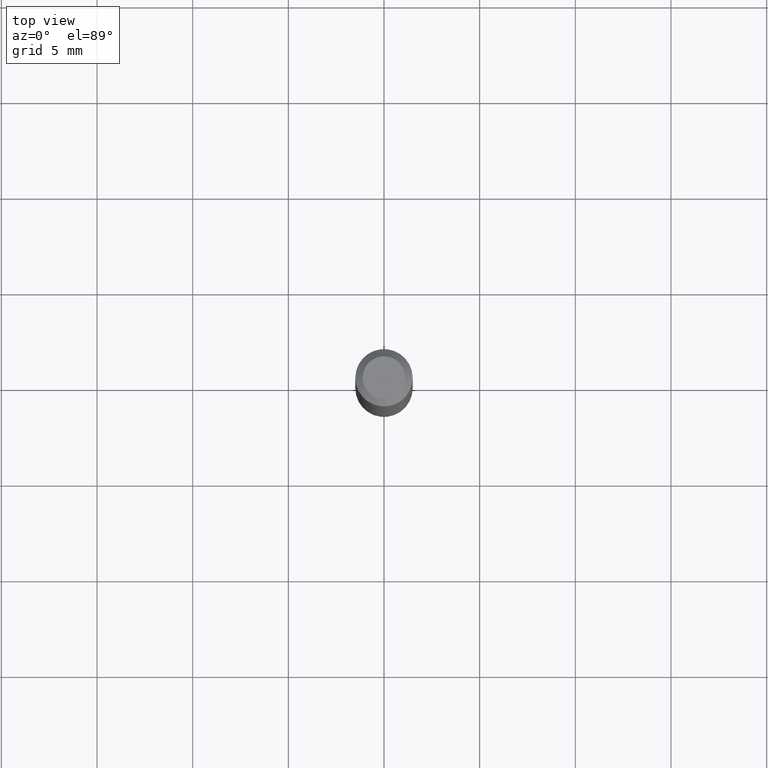
[diagram: clean part render]
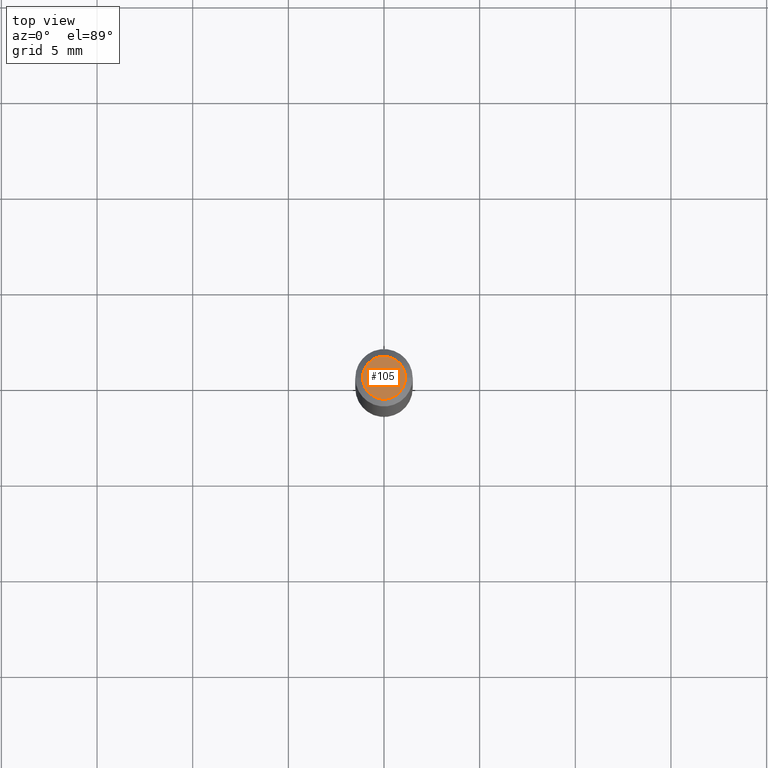
[diagram: same view with one face highlighted and labeled with its STEP entity id]
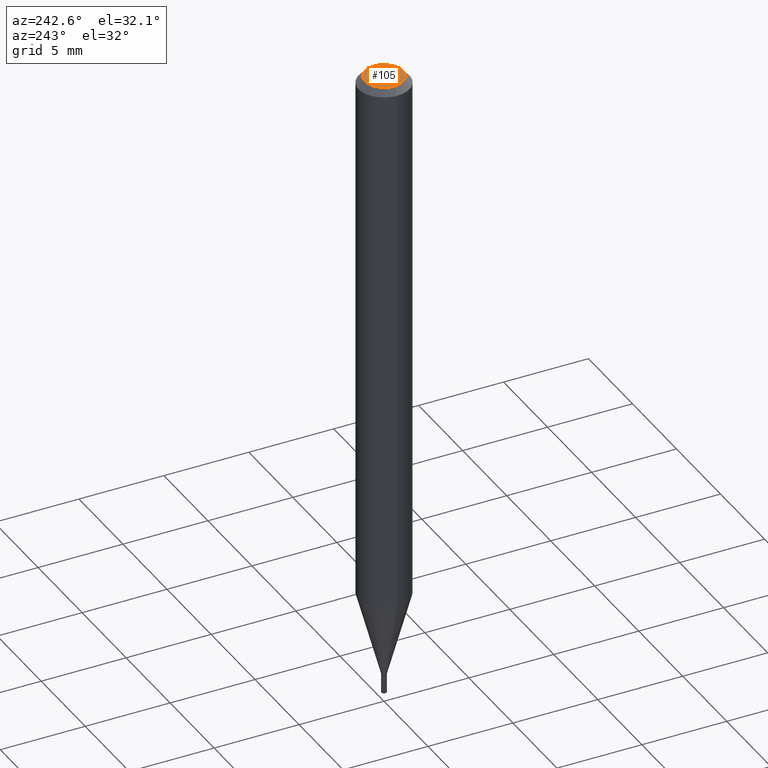
[diagram: same view with one face highlighted and labeled with its STEP entity id]
A machine part, top view. The second image highlights one B-rep face of the part: STEP entity #105.
A second angle (auxiliary view) of the same face is appended — the face is thin or edge-on in the first view.
In plain terms, the highlighted planar face has unit normal (0, -0, -1).
Its self-contained STEP definition (entity closure, byte-faithful):
#8 = CIRCLE ( 'NONE', #38, 0.04404999999999999888 ) ;
#38 = AXIS2_PLACEMENT_3D ( 'NONE', #44, #141, #100 ) ;
#44 = CARTESIAN_POINT ( 'NONE',  ( 5.095808080209832944E-44, -7.275463409461209846E-30, -2.083775539201889035E-15 ) ) ;
#53 = ORIENTED_EDGE ( 'NONE', *, *, #157, .T. ) ;
#63 = DIRECTION ( 'NONE',  ( 1.000000000000000000, -6.982962677686265922E-15, 4.957392940945096353E-29 ) ) ;
#66 = CARTESIAN_POINT ( 'NONE',  ( 5.095808080209832944E-44, -7.275463409461209846E-30, -2.083775539201889035E-15 ) ) ;
#67 = CARTESIAN_POINT ( 'NONE',  ( 0.04404999999999999888, -3.798447818264496564E-16, -2.083775539201886668E-15 ) ) ;
#81 = PLANE ( 'NONE',  #236 ) ;
#100 = DIRECTION ( 'NONE',  ( 1.000000000000000000, -6.982962677686265922E-15, 4.957392940945096353E-29 ) ) ;
#105 = ADVANCED_FACE ( 'NONE', ( #404 ), #81, .F. ) ;
#141 = DIRECTION ( 'NONE',  ( -2.445468806185136597E-29, 3.491481338843145583E-15, 1.000000000000000000 ) ) ;
#154 = CARTESIAN_POINT ( 'NONE',  ( 3.075995059520799729E-16, 0.04404999999999999888, -1.195687522576985293E-15 ) ) ;
#157 = EDGE_CURVE ( 'NONE', #196, #186, #280, .T. ) ;
#167 = AXIS2_PLACEMENT_3D ( 'NONE', #66, #389, #63 ) ;
#186 = VERTEX_POINT ( 'NONE', #67 ) ;
#196 = VERTEX_POINT ( 'NONE', #463 ) ;
#216 = DIRECTION ( 'NONE',  ( 2.438088387897960049E-29, -3.491481338843145188E-15, -1.000000000000000000 ) ) ;
#221 = DIRECTION ( 'NONE',  ( -1.000000000000000000, 6.982962677686265922E-15, -4.876176775795935793E-29 ) ) ;
#236 = AXIS2_PLACEMENT_3D ( 'NONE', #154, #216, #221 ) ;
#280 = CIRCLE ( 'NONE', #167, 0.04404999999999999888 ) ;
#292 = EDGE_CURVE ( 'NONE', #186, #196, #8, .T. ) ;
#382 = ORIENTED_EDGE ( 'NONE', *, *, #292, .T. ) ;
#389 = DIRECTION ( 'NONE',  ( -2.445468806185136597E-29, 3.491481338843145583E-15, 1.000000000000000000 ) ) ;
#404 = FACE_OUTER_BOUND ( 'NONE', #443, .T. ) ;
#443 = EDGE_LOOP ( 'NONE', ( #53, #382 ) ) ;
#463 = CARTESIAN_POINT ( 'NONE',  ( -0.04404999999999999888, 3.337856159933997654E-16, -2.083775539201891401E-15 ) ) ;